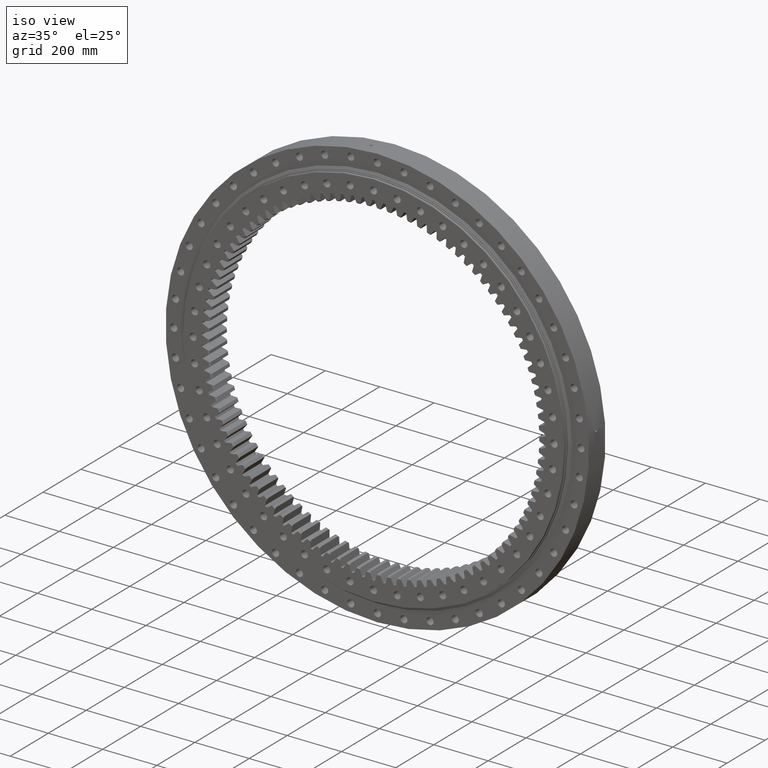
[diagram: clean part render]
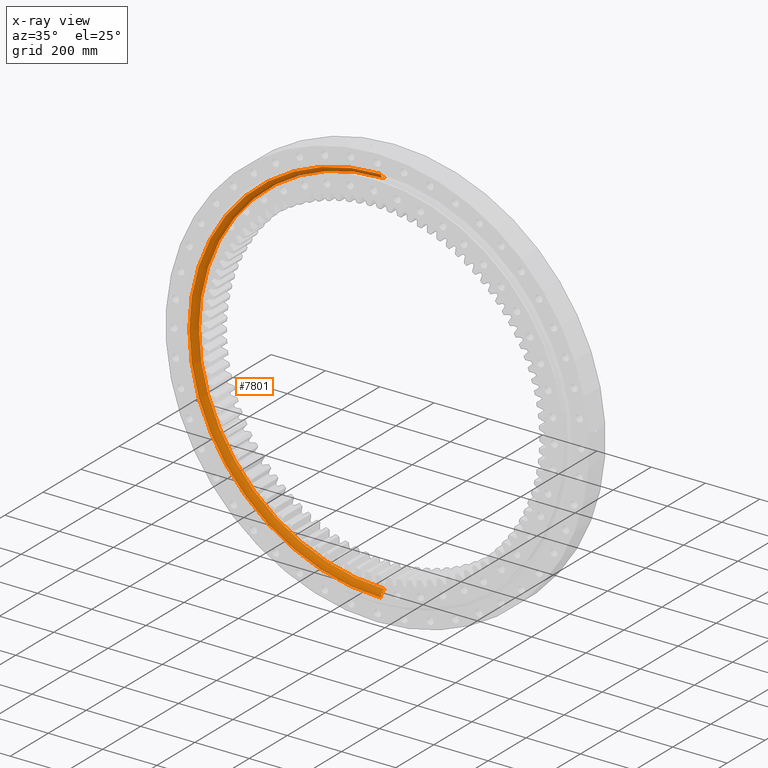
[diagram: x-ray — body ghosted, one internal face saturated and labeled with its STEP entity id]
A machine part, iso view, then the same camera in x-ray: the body is ghosted and one INTERNAL B-rep face — a face not visible from any outside direction — is saturated and labeled: STEP entity #7801.
In plain terms, the highlighted toroidal blend (fillet) surface has major radius 707.5 mm and minor (blend) radius 22.225 mm.
Its self-contained STEP definition (entity closure, byte-faithful):
#649 = DIRECTION ( 'NONE',  ( 7.914688832368751900E-017, 1.000000000000000000, 0.0000000000000000000 ) ) ;
#792 = CARTESIAN_POINT ( 'NONE',  ( -1.280575663818585900E-013, -22.11359578969465300, -705.2775000000000300 ) ) ;
#2507 = DIRECTION ( 'NONE',  ( 1.779758311459930500E-016, 0.0000000000000000000, 1.000000000000000000 ) ) ;
#2579 = DIRECTION ( 'NONE',  ( -1.000000000000000000, 7.914688832368753200E-017, 1.779758311459931700E-016 ) ) ;
#2613 = CARTESIAN_POINT ( 'NONE',  ( -1.259179005357901700E-013, -2.600322326338932200E-014, -707.5000000000000000 ) ) ;
#3264 = TOROIDAL_SURFACE ( 'NONE', #19824, 707.5000000000000000, 22.22500000000000100 ) ;
#4280 = AXIS2_PLACEMENT_3D ( 'NONE', #2613, #2579, #2507 ) ;
#5890 = CIRCLE ( 'NONE', #25951, 685.2749999999999800 ) ;
#7791 = CIRCLE ( 'NONE', #7905, 705.2775000000000300 ) ;
#7801 = ADVANCED_FACE ( 'NONE', ( #26227 ), #3264, .F. ) ;
#7905 = AXIS2_PLACEMENT_3D ( 'NONE', #23965, #23929, #23861 ) ;
#8656 = CARTESIAN_POINT ( 'NONE',  ( 3.804040416000020600E-014, 2.353845922282677500E-014, 685.2749999999999800 ) ) ;
#9887 = DIRECTION ( 'NONE',  ( 1.000000000000000000, -7.914688832368750700E-017, 0.0000000000000000000 ) ) ;
#9999 = DIRECTION ( 'NONE',  ( -7.914688832368751900E-017, -1.000000000000000000, 6.617654413443253200E-017 ) ) ;
#10105 = CARTESIAN_POINT ( 'NONE',  ( 1.862995803420735700E-030, 2.353845922282667800E-014, -2.125378237108636500E-030 ) ) ;
#14448 = EDGE_CURVE ( 'NONE', #17038, #15087, #7791, .T. ) ;
#15014 = DIRECTION ( 'NONE',  ( 1.000000000000000000, -7.914688832368751900E-017, -5.551115123125783900E-017 ) ) ;
#15087 = VERTEX_POINT ( 'NONE', #792 ) ;
#17038 = VERTEX_POINT ( 'NONE', #17076 ) ;
#17076 = CARTESIAN_POINT ( 'NONE',  ( 3.740054366610132500E-014, -22.11359578969456400, 705.2775000000000300 ) ) ;
#17120 = DIRECTION ( 'NONE',  ( 5.551115123125783900E-017, 6.617654413443253200E-017, 1.000000000000000000 ) ) ;
#17126 = DIRECTION ( 'NONE',  ( -7.914688832368751900E-017, -1.000000000000000000, 6.617654413443253200E-017 ) ) ;
#17192 = CARTESIAN_POINT ( 'NONE',  ( 1.647575582707384600E-030, 2.081668171172168500E-014, -1.945260407520891400E-030 ) ) ;
#17537 = VERTEX_POINT ( 'NONE', #8656 ) ;
#17563 = CIRCLE ( 'NONE', #4280, 22.22500000000005100 ) ;
#18377 = CARTESIAN_POINT ( 'NONE',  ( -1.219623876885704800E-013, 2.353845922282656400E-014, -685.2749999999999800 ) ) ;
#19824 = AXIS2_PLACEMENT_3D ( 'NONE', #17192, #17126, #17120 ) ;
#21960 = VERTEX_POINT ( 'NONE', #18377 ) ;
#22337 = ORIENTED_EDGE ( 'NONE', *, *, #14448, .F. ) ;
#22745 = ORIENTED_EDGE ( 'NONE', *, *, #25530, .F. ) ;
#23837 = AXIS2_PLACEMENT_3D ( 'NONE', #29067, #15014, #649 ) ;
#23861 = DIRECTION ( 'NONE',  ( 5.551115123125783900E-017, 6.395044556986006700E-017, 1.000000000000000000 ) ) ;
#23869 = ORIENTED_EDGE ( 'NONE', *, *, #26032, .T. ) ;
#23929 = DIRECTION ( 'NONE',  ( -7.914688832368751900E-017, -1.000000000000000000, 6.617654413443253200E-017 ) ) ;
#23965 = CARTESIAN_POINT ( 'NONE',  ( -1.750222296402125800E-015, -22.11359578969460700, 6.172175841678150900E-016 ) ) ;
#25346 = ORIENTED_EDGE ( 'NONE', *, *, #28455, .T. ) ;
#25530 = EDGE_CURVE ( 'NONE', #15087, #21960, #17563, .T. ) ;
#25951 = AXIS2_PLACEMENT_3D ( 'NONE', #10105, #9999, #9887 ) ;
#26032 = EDGE_CURVE ( 'NONE', #17537, #21960, #5890, .T. ) ;
#26227 = FACE_OUTER_BOUND ( 'NONE', #27017, .T. ) ;
#27017 = EDGE_LOOP ( 'NONE', ( #25346, #23869, #22745, #22337 ) ) ;
#28455 = EDGE_CURVE ( 'NONE', #17038, #17537, #29095, .T. ) ;
#29067 = CARTESIAN_POINT ( 'NONE',  ( 3.927413949611491900E-014, 6.763658668683271400E-014, 707.5000000000000000 ) ) ;
#29095 = CIRCLE ( 'NONE', #23837, 22.22500000000000100 ) ;